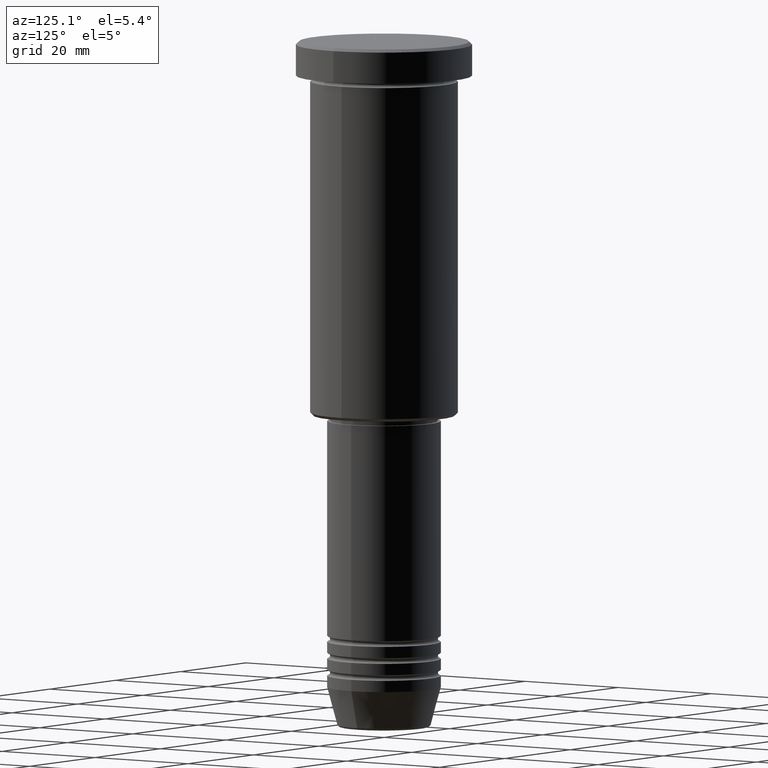
[diagram: clean part render]
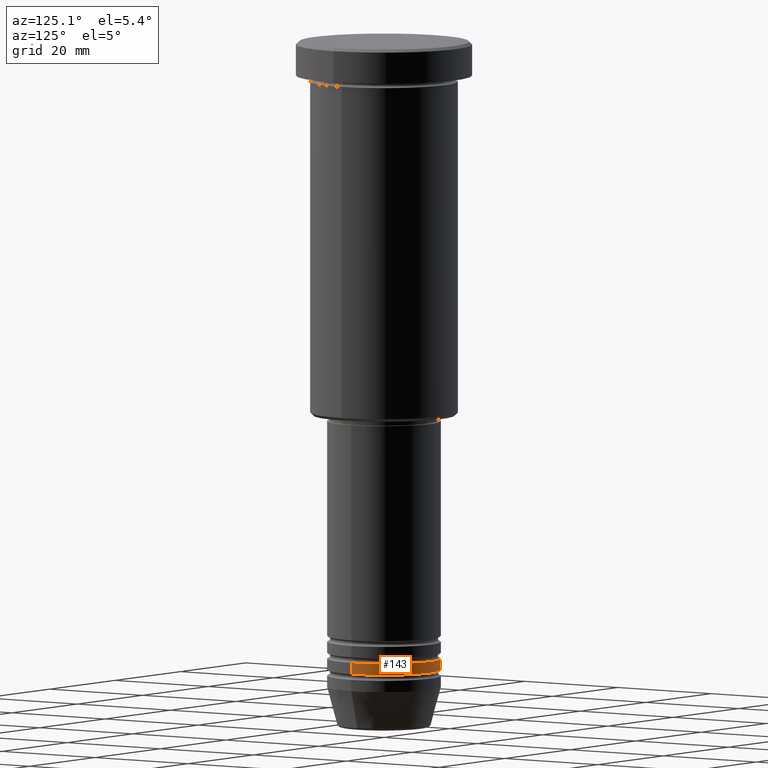
[diagram: same view with one face highlighted and labeled with its STEP entity id]
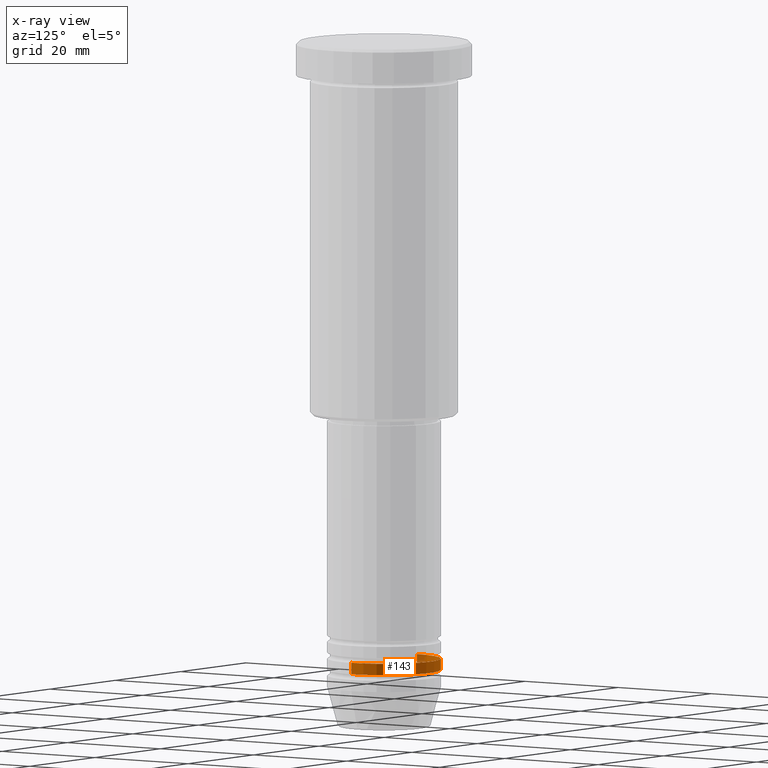
[diagram: x-ray of the same camera — body ghosted, the highlighted face saturated]
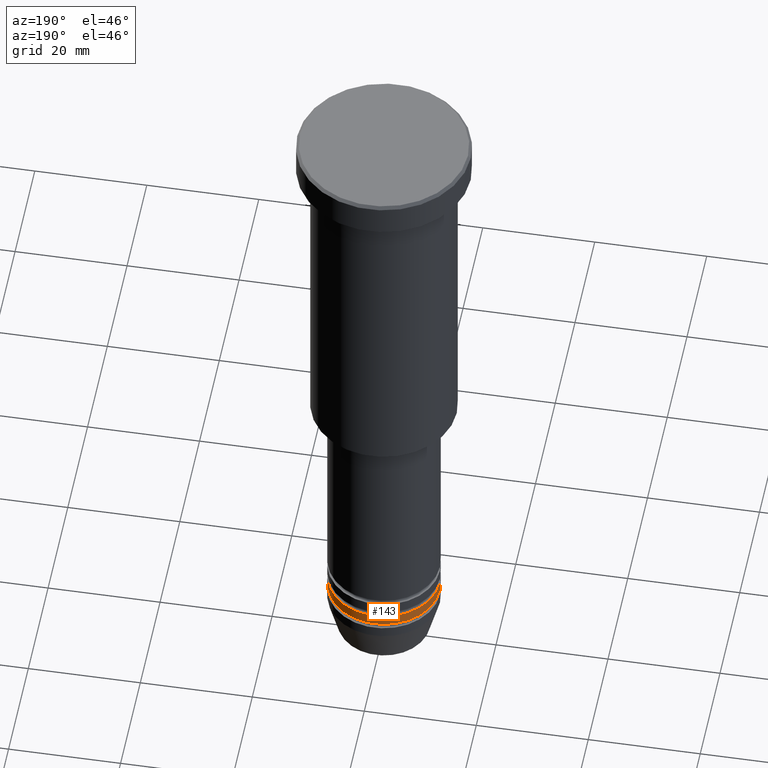
[diagram: same view with one face highlighted and labeled with its STEP entity id]
A machine part, auxiliary view. The second image highlights one B-rep face of the part: STEP entity #143.
The next image is the same camera in x-ray: the body ghosted, the highlighted face saturated — about 6% of this face is hidden behind the body in this view.
A second angle (auxiliary view) of the same face is appended — the face is thin or edge-on in the first view.
In plain terms, the highlighted cylindrical surface (partial cylindrical patch) has radius 10 mm, axis along (-0, -0, 1).
Its self-contained STEP definition (entity closure, byte-faithful):
#33 = DIRECTION ( 'NONE',  ( 1.000000000000000000, 0.000000000000000000, 0.000000000000000000 ) ) ;
#39 = VERTEX_POINT ( 'NONE', #1145 ) ;
#64 = DIRECTION ( 'NONE',  ( -0.000000000000000000, -0.000000000000000000, 1.000000000000000000 ) ) ;
#123 = VECTOR ( 'NONE', #1011, 1000.000000000000000 ) ;
#143 = ADVANCED_FACE ( 'NONE', ( #887 ), #900, .T. ) ;
#159 = AXIS2_PLACEMENT_3D ( 'NONE', #858, #225, #33 ) ;
#211 = CARTESIAN_POINT ( 'NONE',  ( 0.000000000000000000, 0.000000000000000000, -109.0000000000000000 ) ) ;
#225 = DIRECTION ( 'NONE',  ( -0.000000000000000000, -0.000000000000000000, 1.000000000000000000 ) ) ;
#249 = CARTESIAN_POINT ( 'NONE',  ( 10.00000000000000000, 0.000000000000000000, 0.000000000000000000 ) ) ;
#294 = CARTESIAN_POINT ( 'NONE',  ( -10.00000000000000000, 1.224646799147353256E-15, -109.0000000000000000 ) ) ;
#360 = CARTESIAN_POINT ( 'NONE',  ( -10.00000000000000000, 1.224646799147353256E-15, -110.9999999999999858 ) ) ;
#396 = DIRECTION ( 'NONE',  ( -0.000000000000000000, -0.000000000000000000, 1.000000000000000000 ) ) ;
#397 = EDGE_CURVE ( 'NONE', #39, #798, #740, .T. ) ;
#410 = EDGE_CURVE ( 'NONE', #770, #777, #493, .T. ) ;
#448 = CARTESIAN_POINT ( 'NONE',  ( 0.000000000000000000, 0.000000000000000000, 0.000000000000000000 ) ) ;
#484 = ORIENTED_EDGE ( 'NONE', *, *, #800, .T. ) ;
#493 = CIRCLE ( 'NONE', #1076, 10.00000000000000000 ) ;
#597 = DIRECTION ( 'NONE',  ( 1.000000000000000000, 0.000000000000000000, 0.000000000000000000 ) ) ;
#655 = CARTESIAN_POINT ( 'NONE',  ( -10.00000000000000000, 1.224646799147353256E-15, 0.000000000000000000 ) ) ;
#677 = ORIENTED_EDGE ( 'NONE', *, *, #410, .F. ) ;
#712 = DIRECTION ( 'NONE',  ( 1.000000000000000000, 0.000000000000000000, 0.000000000000000000 ) ) ;
#739 = CARTESIAN_POINT ( 'NONE',  ( 10.00000000000000000, 0.000000000000000000, -109.0000000000000000 ) ) ;
#740 = CIRCLE ( 'NONE', #159, 10.00000000000000000 ) ;
#770 = VERTEX_POINT ( 'NONE', #739 ) ;
#777 = VERTEX_POINT ( 'NONE', #294 ) ;
#798 = VERTEX_POINT ( 'NONE', #360 ) ;
#800 = EDGE_CURVE ( 'NONE', #798, #777, #998, .T. ) ;
#858 = CARTESIAN_POINT ( 'NONE',  ( 0.000000000000000000, 0.000000000000000000, -110.9999999999999858 ) ) ;
#887 = FACE_OUTER_BOUND ( 'NONE', #978, .T. ) ;
#900 = CYLINDRICAL_SURFACE ( 'NONE', #1112, 10.00000000000000000 ) ;
#935 = ORIENTED_EDGE ( 'NONE', *, *, #397, .T. ) ;
#978 = EDGE_LOOP ( 'NONE', ( #935, #484, #677, #1058 ) ) ;
#979 = DIRECTION ( 'NONE',  ( -0.000000000000000000, -0.000000000000000000, 1.000000000000000000 ) ) ;
#998 = LINE ( 'NONE', #655, #123 ) ;
#1011 = DIRECTION ( 'NONE',  ( -0.000000000000000000, -0.000000000000000000, 1.000000000000000000 ) ) ;
#1041 = VECTOR ( 'NONE', #979, 1000.000000000000000 ) ;
#1058 = ORIENTED_EDGE ( 'NONE', *, *, #1081, .F. ) ;
#1067 = LINE ( 'NONE', #249, #1041 ) ;
#1076 = AXIS2_PLACEMENT_3D ( 'NONE', #211, #396, #597 ) ;
#1081 = EDGE_CURVE ( 'NONE', #39, #770, #1067, .T. ) ;
#1112 = AXIS2_PLACEMENT_3D ( 'NONE', #448, #64, #712 ) ;
#1145 = CARTESIAN_POINT ( 'NONE',  ( 10.00000000000000000, 0.000000000000000000, -110.9999999999999858 ) ) ;